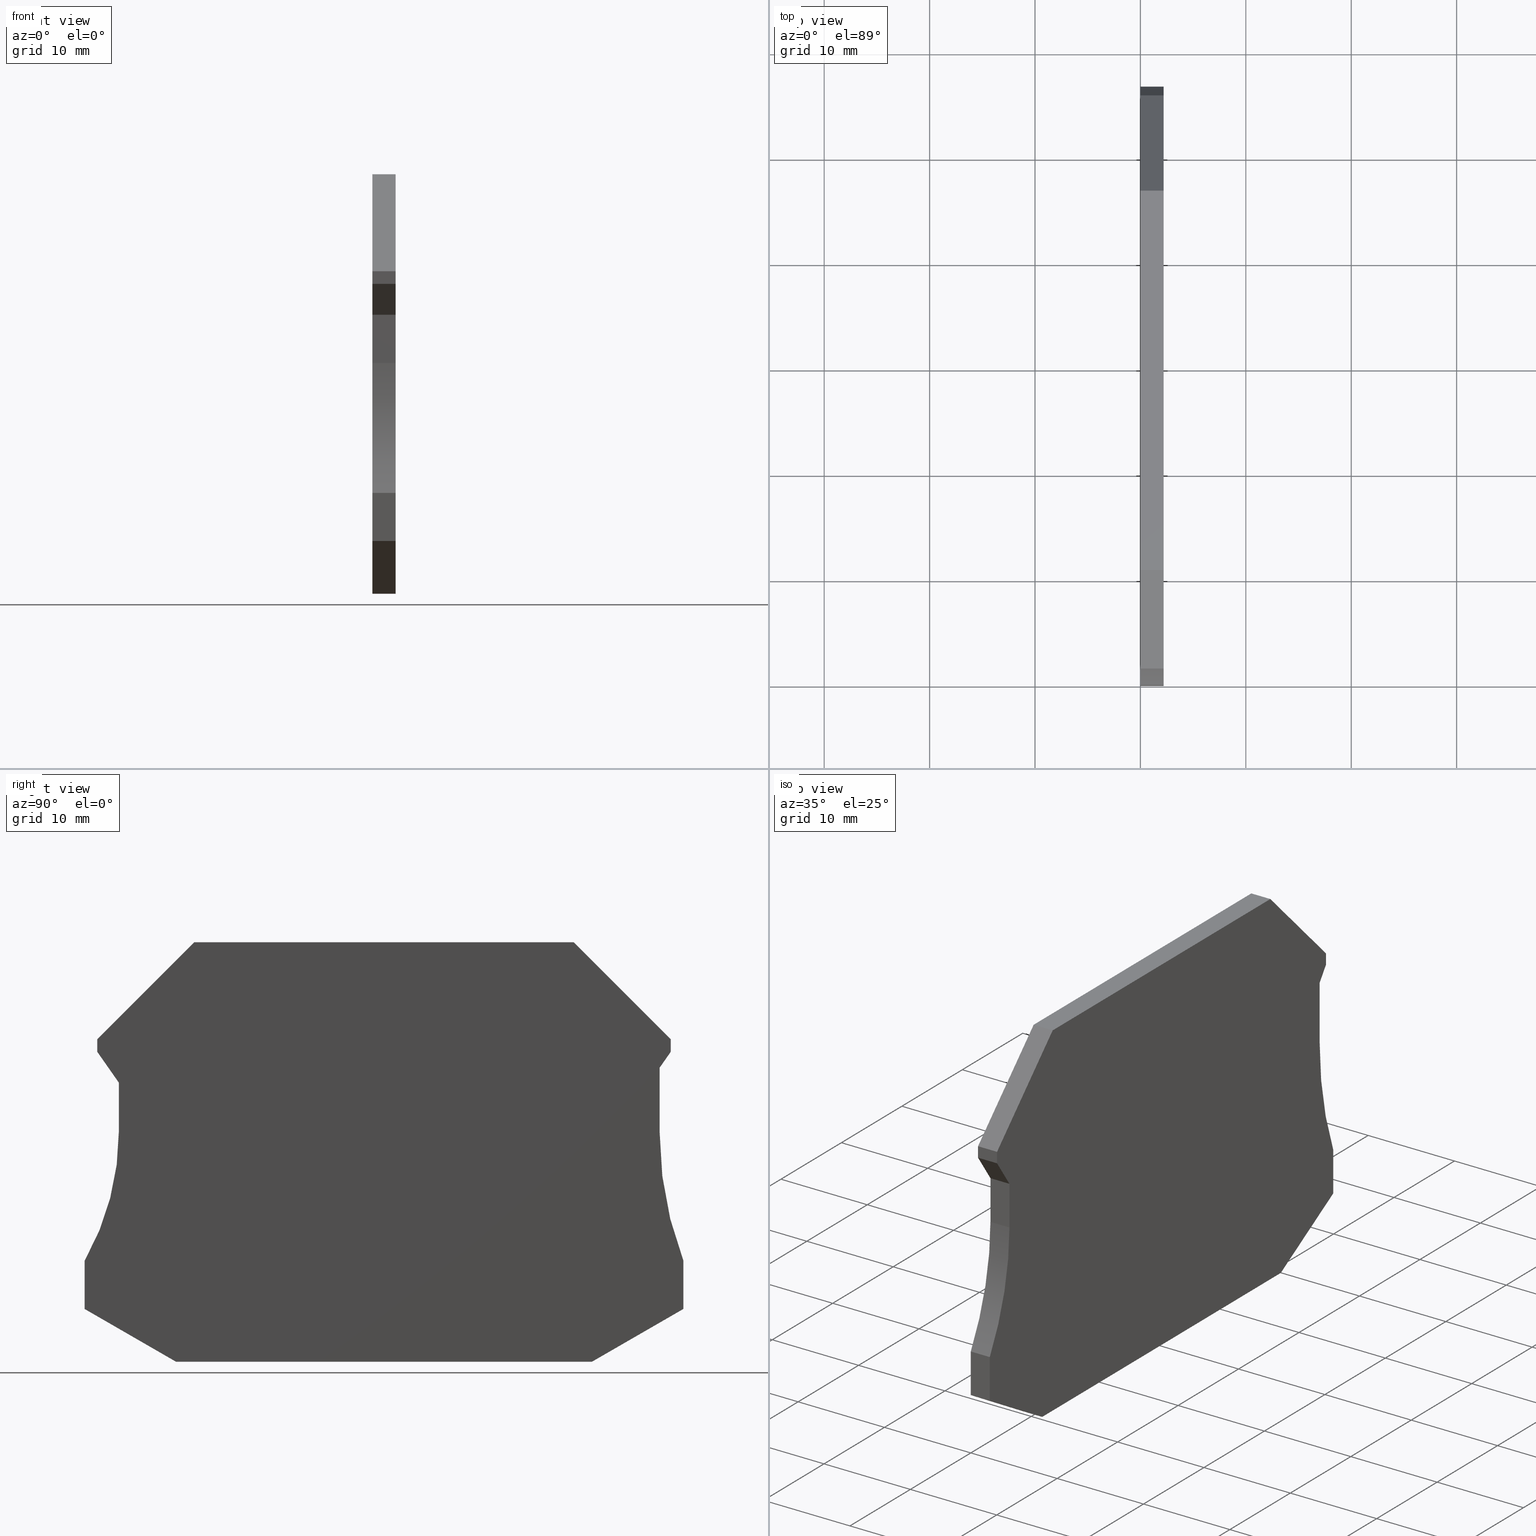
[diagram: canonical four-view strip — front | top / right | iso, engineering-drawing reading convention]
A machine part, canonical four-view strip (front | top / right | iso — engineering-drawing reading convention). The complete STEP part file that produces these views, byte-faithful:
ISO-10303-21;
HEADER;
FILE_DESCRIPTION(('Creo Elements/Direct Modeling STEP Export'),'2;1');
FILE_NAME(
'D:/temp/JobSpoolerServerData/JobServer Files/368bb295-e2b8-49bc-b2a7-e5
b2ab7b2fec/work/output/model.stp','2018-01-19T 8:37:18',(''),(''),
'Creo Elements/Direct Modeling STEP processor for AP214 (Solid Model)',
'Creo Elements/Direct Modeling 18.1I  14-Aug-2016 (C) Parametric Technol
ogy GmbH','');
FILE_SCHEMA(('AUTOMOTIVE_DESIGN { 1 0 10303 214 1 1 1 1 }'));
ENDSEC;
DATA;
#10=CARTESIAN_POINT('',(72.2463843677915,-62.2300024000076,
-4.46753745109163E-13));
#20=DIRECTION('',(0.,-1.05655906439346E-14,1.));
#30=DIRECTION('',(-1.,-1.61097812794554E-28,-1.70209354362047E-42));
#40=AXIS2_PLACEMENT_3D('',#10,#20,#30);
#50=PLANE('',#40);
#60=CARTESIAN_POINT('',(47.920285,-77.4852539852205,
-6.07934488528757E-13));
#70=DIRECTION('',(-0.866025403784439,0.5,5.27355936696949E-15));
#80=VECTOR('',#70,1.);
#90=LINE('',#60,#80);
#100=CARTESIAN_POINT('',(14.603847801119,-58.2500000000073,
-4.05057980869241E-13));
#110=VERTEX_POINT('',#100);
#120=CARTESIAN_POINT('',(5.92968082605108,-53.2419673619561,
-3.51789846203769E-13));
#130=VERTEX_POINT('',#120);
#140=EDGE_CURVE('',#110,#130,#90,.T.);
#150=ORIENTED_EDGE('',*,*,#140,.T.);
#160=CARTESIAN_POINT('',(47.920285,-58.2500000000073,
-1.71052260616391E-13));
#170=DIRECTION('',(-1.,0.,5.25980973659004E-15));
#180=VECTOR('',#170,1.);
#190=LINE('',#160,#180);
#200=CARTESIAN_POINT('',(54.0555138509831,-58.2500000000073,
-4.04768099745673E-13));
#210=VERTEX_POINT('',#200);
#220=EDGE_CURVE('',#210,#110,#190,.T.);
#230=ORIENTED_EDGE('',*,*,#220,.T.);
#240=CARTESIAN_POINT('',(-1.4210854715202E-14,-89.458965473056,
-6.97102989304098E-13));
#250=DIRECTION('',(-0.866025403784439,-0.5,-5.27355936696949E-15));
#260=VECTOR('',#250,1.);
#270=LINE('',#240,#260);
#280=CARTESIAN_POINT('',(62.7296808260511,-53.2419673619561,
-3.51947784888705E-13));
#290=VERTEX_POINT('',#280);
#300=EDGE_CURVE('',#290,#210,#270,.T.);
#310=ORIENTED_EDGE('',*,*,#300,.T.);
#320=CARTESIAN_POINT('',(62.7296808260511,6.3948846218409E-14,
2.48083819314093E-13));
#330=DIRECTION('',(0.,-1.,-1.05655906439346E-14));
#340=VECTOR('',#330,1.);
#350=LINE('',#320,#340);
#360=CARTESIAN_POINT('',(62.7296808260511,-48.6508242110641,
-1.74971148680925E-13));
#370=VERTEX_POINT('',#360);
#380=EDGE_CURVE('',#370,#290,#350,.T.);
#390=ORIENTED_EDGE('',*,*,#380,.T.);
#400=CARTESIAN_POINT('',(94.4796808260507,-36.487868155893,
-1.37223565843669E-13));
#410=DIRECTION('',(0.,0.,1.));
#420=DIRECTION('',(1.,0.,0.));
#430=AXIS2_PLACEMENT_3D('',#400,#410,#420);
#440=CIRCLE('',#430,34.);
#450=CARTESIAN_POINT('',(60.4796808260507,-36.487868155893,
-1.74971148680925E-13));
#460=VERTEX_POINT('',#450);
#470=EDGE_CURVE('',#460,#370,#440,.T.);
#480=ORIENTED_EDGE('',*,*,#470,.T.);
#490=CARTESIAN_POINT('',(60.4796808260507,6.3948846218409E-14,
2.48083819314093E-13));
#500=DIRECTION('',(0.,1.,1.05655906439346E-14));
#510=VECTOR('',#500,1.);
#520=LINE('',#490,#510);
#530=CARTESIAN_POINT('',(60.4796808260507,-30.3495554070836,
-1.09896775345054E-13));
#540=VERTEX_POINT('',#530);
#550=EDGE_CURVE('',#460,#540,#520,.T.);
#560=ORIENTED_EDGE('',*,*,#550,.F.);
#570=CARTESIAN_POINT('',(81.7306683034039,6.3948846218409E-14,
2.48083819314093E-13));
#580=DIRECTION('',(-0.573576436351046,-0.819152044288992,
-8.65973959207622E-15));
#590=VECTOR('',#580,1.);
#600=LINE('',#570,#590);
#610=CARTESIAN_POINT('',(61.5296808260507,-28.8500000000043,
-9.40440903401997E-14));
#620=VERTEX_POINT('',#610);
#630=EDGE_CURVE('',#620,#540,#600,.T.);
#640=ORIENTED_EDGE('',*,*,#630,.T.);
#650=CARTESIAN_POINT('',(61.5296808260507,6.3948846218409E-14,
2.48083819314093E-13));
#660=DIRECTION('',(0.,-1.,-1.05655906439346E-14));
#670=VECTOR('',#660,1.);
#680=LINE('',#650,#670);
#690=CARTESIAN_POINT('',(61.5296808260507,-27.6500000000088,
-8.13955952844994E-14));
#700=VERTEX_POINT('',#690);
#710=EDGE_CURVE('',#700,#620,#680,.T.);
#720=ORIENTED_EDGE('',*,*,#710,.T.);
#730=CARTESIAN_POINT('',(67.7658078260404,-33.886127,
-1.47286598378007E-13));
#740=DIRECTION('',(-0.707106781186466,0.70710678118663,
7.38298311375729E-15));
#750=VECTOR('',#740,1.);
#760=LINE('',#730,#750);
#770=CARTESIAN_POINT('',(52.3296808260488,-18.4500000000048,
1.58078386397419E-14));
#780=VERTEX_POINT('',#770);
#790=EDGE_CURVE('',#700,#780,#760,.T.);
#800=ORIENTED_EDGE('',*,*,#790,.F.);
#810=CARTESIAN_POINT('',(-1.4210854715202E-14,-18.4500000000048,
5.3148671933448E-14));
#820=DIRECTION('',(-1.,1.61097812794554E-28,1.71518932033358E-42));
#830=VECTOR('',#820,1.);
#840=LINE('',#810,#830);
#850=CARTESIAN_POINT('',(16.3296808260526,-18.4500000000048,
1.58078386397419E-14));
#860=VERTEX_POINT('',#850);
#870=EDGE_CURVE('',#780,#860,#840,.T.);
#880=ORIENTED_EDGE('',*,*,#870,.F.);
#890=CARTESIAN_POINT('',(34.7796808260532,6.3948846218409E-14,
2.48083819314093E-13));
#900=DIRECTION('',(-0.707106781186466,-0.70710678118663,
-7.43849426498855E-15));
#910=VECTOR('',#900,1.);
#920=LINE('',#890,#910);
#930=CARTESIAN_POINT('',(7.12968082605067,-27.6500000000088,
-8.1682277343663E-14));
#940=VERTEX_POINT('',#930);
#950=EDGE_CURVE('',#860,#940,#920,.T.);
#960=ORIENTED_EDGE('',*,*,#950,.F.);
#970=CARTESIAN_POINT('',(7.12968082605067,6.3948846218409E-14,
2.48083819314093E-13));
#980=DIRECTION('',(0.,-1.,-1.05655906439346E-14));
#990=VECTOR('',#980,1.);
#1000=LINE('',#970,#990);
#1010=CARTESIAN_POINT('',(7.12968082605067,-28.8500000000043,
-9.40743040571737E-14));
#1020=VERTEX_POINT('',#1010);
#1030=EDGE_CURVE('',#940,#1020,#1000,.T.);
#1040=ORIENTED_EDGE('',*,*,#1030,.F.);
#1050=CARTESIAN_POINT('',(-13.0713066513026,6.3948846218409E-14,
2.48083819314093E-13));
#1060=DIRECTION('',(0.573576436351046,-0.819152044288992,
-8.65973959207622E-15));
#1070=VECTOR('',#1060,1.);
#1080=LINE('',#1050,#1070);
#1090=CARTESIAN_POINT('',(9.17968082605068,-31.7777034138257,
-1.2500721985446E-13));
#1100=VERTEX_POINT('',#1090);
#1110=EDGE_CURVE('',#1020,#1100,#1080,.T.);
#1120=ORIENTED_EDGE('',*,*,#1110,.F.);
#1130=CARTESIAN_POINT('',(9.17968082605068,6.3948846218409E-14,
2.48083819314093E-13));
#1140=DIRECTION('',(0.,-1.,-1.05655906439346E-14));
#1150=VECTOR('',#1140,1.);
#1160=LINE('',#1130,#1150);
#1170=CARTESIAN_POINT('',(9.17968082605067,-36.3500000000066,
-1.73194791841524E-13));
#1180=VERTEX_POINT('',#1170);
#1190=EDGE_CURVE('',#1100,#1180,#1160,.T.);
#1200=ORIENTED_EDGE('',*,*,#1190,.F.);
#1210=CARTESIAN_POINT('',(-15.8203191739493,-36.3500000000066,
-1.35891298214119E-13));
#1220=DIRECTION('',(0.,0.,1.));
#1230=DIRECTION('',(1.,0.,0.));
#1240=AXIS2_PLACEMENT_3D('',#1210,#1220,#1230);
#1250=CIRCLE('',#1240,25.);
#1260=CARTESIAN_POINT('',(5.92968082605108,-48.676293035627,
-3.03550800258254E-13));
#1270=VERTEX_POINT('',#1260);
#1280=EDGE_CURVE('',#1270,#1180,#1250,.T.);
#1290=ORIENTED_EDGE('',*,*,#1280,.T.);
#1300=CARTESIAN_POINT('',(5.92968082605108,-33.886127,
-1.47283960369994E-13));
#1310=DIRECTION('',(2.77555756156289E-17,1.,1.05655906439346E-14));
#1320=VECTOR('',#1310,1.);
#1330=LINE('',#1300,#1320);
#1340=EDGE_CURVE('',#130,#1270,#1330,.T.);
#1350=ORIENTED_EDGE('',*,*,#1340,.T.);
#1360=EDGE_LOOP('',(#1350,#1290,#1200,#1120,#1040,#960,#880,#800,#720,
#640,#560,#480,#390,#310,#230,#150));
#1370=FACE_OUTER_BOUND('',#1360,.T.);
#1380=ADVANCED_FACE('',(#1370),#50,.F.);
#1390=COLOUR_RGB('',0.560784339904785,0.588235318660736,
0.600000023841858);
#1400=FILL_AREA_STYLE_COLOUR('',#1390);
#1410=FILL_AREA_STYLE('',(#1400));
#1420=SURFACE_STYLE_FILL_AREA(#1410);
#1430=SURFACE_SIDE_STYLE('',(#1420));
#1440=SURFACE_STYLE_USAGE(.BOTH.,#1430);
#1450=PRESENTATION_STYLE_ASSIGNMENT((#1440));
#1460=CARTESIAN_POINT('',(61.5296808260507,-27.6500000000048,
1.09999999999998));
#1470=DIRECTION('',(-1.,0.,0.));
#1480=DIRECTION('',(0.,1.,0.));
#1490=AXIS2_PLACEMENT_3D('',#1460,#1470,#1480);
#1500=PLANE('',#1490);
#1510=CARTESIAN_POINT('',(61.5296808260507,-27.6500000000088,
-2.8421709430404E-14));
#1520=DIRECTION('',(0.,0.,-1.));
#1530=VECTOR('',#1520,1.);
#1540=LINE('',#1510,#1530);
#1550=CARTESIAN_POINT('',(61.5296808260507,-27.6500000000088,
2.19999999999998));
#1560=VERTEX_POINT('',#1550);
#1570=EDGE_CURVE('',#1560,#700,#1540,.T.);
#1580=ORIENTED_EDGE('',*,*,#1570,.F.);
#1590=ORIENTED_EDGE('',*,*,#710,.F.);
#1600=CARTESIAN_POINT('',(61.5296808260507,-28.8500000000043,
-2.8421709430404E-14));
#1610=DIRECTION('',(0.,0.,-1.));
#1620=VECTOR('',#1610,1.);
#1630=LINE('',#1600,#1620);
#1640=CARTESIAN_POINT('',(61.5296808260507,-28.8500000000043,
2.19999999999998));
#1650=VERTEX_POINT('',#1640);
#1660=EDGE_CURVE('',#1650,#620,#1630,.T.);
#1670=ORIENTED_EDGE('',*,*,#1660,.T.);
#1680=CARTESIAN_POINT('',(61.5296808260507,-33.886127,2.19999999999998))
;
#1690=DIRECTION('',(0.,1.,0.));
#1700=VECTOR('',#1690,1.);
#1710=LINE('',#1680,#1700);
#1720=EDGE_CURVE('',#1650,#1560,#1710,.T.);
#1730=ORIENTED_EDGE('',*,*,#1720,.F.);
#1740=EDGE_LOOP('',(#1730,#1670,#1590,#1580));
#1750=FACE_OUTER_BOUND('',#1740,.T.);
#1760=ADVANCED_FACE('',(#1750),#1500,.F.);
#1770=COLOUR_RGB('',0.560784339904785,0.588235318660736,
0.600000023841858);
#1780=FILL_AREA_STYLE_COLOUR('',#1770);
#1790=FILL_AREA_STYLE('',(#1780));
#1800=SURFACE_STYLE_FILL_AREA(#1790);
#1810=SURFACE_SIDE_STYLE('',(#1800));
#1820=SURFACE_STYLE_USAGE(.BOTH.,#1810);
#1830=PRESENTATION_STYLE_ASSIGNMENT((#1820));
#1840=CARTESIAN_POINT('',(5.9713986625242,-53.2660531660738,
2.19999999999998));
#1850=DIRECTION('',(-0.5,-0.866025403784439,-0.));
#1860=DIRECTION('',(-0.866025403784439,0.5,0.));
#1870=AXIS2_PLACEMENT_3D('',#1840,#1850,#1860);
#1880=PLANE('',#1870);
#1890=CARTESIAN_POINT('',(47.920285,-77.4852539852205,2.19999999999998))
;
#1900=DIRECTION('',(-0.866025403784439,0.5,0.));
#1910=VECTOR('',#1900,1.);
#1920=LINE('',#1890,#1910);
#1930=CARTESIAN_POINT('',(14.603847801119,-58.2500000000073,
2.19999999999998));
#1940=VERTEX_POINT('',#1930);
#1950=CARTESIAN_POINT('',(5.92968082605108,-53.2419673619561,
2.19999999999998));
#1960=VERTEX_POINT('',#1950);
#1970=EDGE_CURVE('',#1940,#1960,#1920,.T.);
#1980=ORIENTED_EDGE('',*,*,#1970,.T.);
#1990=CARTESIAN_POINT('',(14.603847801119,-58.2500000000073,
-2.8421709430404E-14));
#2000=DIRECTION('',(0.,0.,-1.));
#2010=VECTOR('',#2000,1.);
#2020=LINE('',#1990,#2010);
#2030=EDGE_CURVE('',#1940,#110,#2020,.T.);
#2040=ORIENTED_EDGE('',*,*,#2030,.F.);
#2050=ORIENTED_EDGE('',*,*,#140,.F.);
#2060=CARTESIAN_POINT('',(5.92968082605108,-53.2419673619561,
-2.8421709430404E-14));
#2070=DIRECTION('',(0.,0.,1.));
#2080=VECTOR('',#2070,1.);
#2090=LINE('',#2060,#2080);
#2100=EDGE_CURVE('',#130,#1960,#2090,.T.);
#2110=ORIENTED_EDGE('',*,*,#2100,.F.);
#2120=EDGE_LOOP('',(#2110,#2050,#2040,#1980));
#2130=FACE_OUTER_BOUND('',#2120,.T.);
#2140=ADVANCED_FACE('',(#2130),#1880,.T.);
#2150=COLOUR_RGB('',0.560784339904785,0.588235318660736,
0.600000023841858);
#2160=FILL_AREA_STYLE_COLOUR('',#2150);
#2170=FILL_AREA_STYLE('',(#2160));
#2180=SURFACE_STYLE_FILL_AREA(#2170);
#2190=SURFACE_SIDE_STYLE('',(#2180));
#2200=SURFACE_STYLE_USAGE(.BOTH.,#2190);
#2210=PRESENTATION_STYLE_ASSIGNMENT((#2200));
#2220=CARTESIAN_POINT('',(-15.8203191739493,-36.3500000000066,
2.19999999999998));
#2230=DIRECTION('',(0.,0.,1.));
#2240=DIRECTION('',(1.,0.,0.));
#2250=AXIS2_PLACEMENT_3D('',#2220,#2230,#2240);
#2260=CYLINDRICAL_SURFACE('',#2250,25.);
#2270=ORIENTED_EDGE('',*,*,#1280,.F.);
#2280=CARTESIAN_POINT('',(9.17968082605067,-36.3500000000066,
1.09999999999998));
#2290=DIRECTION('',(0.,0.,-1.));
#2300=VECTOR('',#2290,1.);
#2310=LINE('',#2280,#2300);
#2320=CARTESIAN_POINT('',(9.17968082605067,-36.3500000000066,
2.19999999999998));
#2330=VERTEX_POINT('',#2320);
#2340=EDGE_CURVE('',#2330,#1180,#2310,.T.);
#2350=ORIENTED_EDGE('',*,*,#2340,.T.);
#2360=CARTESIAN_POINT('',(-15.8203191739493,-36.3500000000066,
2.19999999999998));
#2370=DIRECTION('',(0.,0.,1.));
#2380=DIRECTION('',(1.,0.,0.));
#2390=AXIS2_PLACEMENT_3D('',#2360,#2370,#2380);
#2400=CIRCLE('',#2390,25.);
#2410=CARTESIAN_POINT('',(5.92968082605108,-48.676293035627,
2.19999999999998));
#2420=VERTEX_POINT('',#2410);
#2430=EDGE_CURVE('',#2420,#2330,#2400,.T.);
#2440=ORIENTED_EDGE('',*,*,#2430,.T.);
#2450=CARTESIAN_POINT('',(5.92968082605108,-48.676293035627,
2.19999999999998));
#2460=DIRECTION('',(0.,0.,1.));
#2470=VECTOR('',#2460,1.);
#2480=LINE('',#2450,#2470);
#2490=EDGE_CURVE('',#1270,#2420,#2480,.T.);
#2500=ORIENTED_EDGE('',*,*,#2490,.T.);
#2510=EDGE_LOOP('',(#2500,#2440,#2350,#2270));
#2520=FACE_OUTER_BOUND('',#2510,.T.);
#2530=ADVANCED_FACE('',(#2520),#2260,.F.);
#2540=COLOUR_RGB('',0.560784339904785,0.588235318660736,
0.600000023841858);
#2550=FILL_AREA_STYLE_COLOUR('',#2540);
#2560=FILL_AREA_STYLE('',(#2550));
#2570=SURFACE_STYLE_FILL_AREA(#2560);
#2580=SURFACE_SIDE_STYLE('',(#2570));
#2590=SURFACE_STYLE_USAGE(.BOTH.,#2580);
#2600=PRESENTATION_STYLE_ASSIGNMENT((#2590));
#2610=CARTESIAN_POINT('',(52.3296808260488,-18.4500000000048,
1.09999999999998));
#2620=DIRECTION('',(-0.70710678118663,-0.707106781186466,-0.));
#2630=DIRECTION('',(-0.707106781186466,0.70710678118663,0.));
#2640=AXIS2_PLACEMENT_3D('',#2610,#2620,#2630);
#2650=PLANE('',#2640);
#2660=CARTESIAN_POINT('',(52.3296808260488,-18.4500000000048,
-2.8421709430404E-14));
#2670=DIRECTION('',(-1.05655906439322E-14,1.05655906439346E-14,-1.));
#2680=VECTOR('',#2670,1.);
#2690=LINE('',#2660,#2680);
#2700=CARTESIAN_POINT('',(52.3296808260488,-18.4500000000048,
2.19999999999998));
#2710=VERTEX_POINT('',#2700);
#2720=EDGE_CURVE('',#2710,#780,#2690,.T.);
#2730=ORIENTED_EDGE('',*,*,#2720,.F.);
#2740=ORIENTED_EDGE('',*,*,#790,.T.);
#2750=ORIENTED_EDGE('',*,*,#1570,.T.);
#2760=CARTESIAN_POINT('',(67.7658078260404,-33.886127,2.19999999999998))
;
#2770=DIRECTION('',(-0.707106781186466,0.70710678118663,0.));
#2780=VECTOR('',#2770,1.);
#2790=LINE('',#2760,#2780);
#2800=EDGE_CURVE('',#1560,#2710,#2790,.T.);
#2810=ORIENTED_EDGE('',*,*,#2800,.F.);
#2820=EDGE_LOOP('',(#2810,#2750,#2740,#2730));
#2830=FACE_OUTER_BOUND('',#2820,.T.);
#2840=ADVANCED_FACE('',(#2830),#2650,.F.);
#2850=COLOUR_RGB('',0.560784339904785,0.588235318660736,
0.600000023841858);
#2860=FILL_AREA_STYLE_COLOUR('',#2850);
#2870=FILL_AREA_STYLE('',(#2860));
#2880=SURFACE_STYLE_FILL_AREA(#2870);
#2890=SURFACE_SIDE_STYLE('',(#2880));
#2900=SURFACE_STYLE_USAGE(.BOTH.,#2890);
#2910=PRESENTATION_STYLE_ASSIGNMENT((#2900));
#2920=CARTESIAN_POINT('',(34.1296808260507,-18.4500000000048,
1.60000000000014));
#2930=DIRECTION('',(1.61097812794554E-28,-1.,-1.05655906439346E-14));
#2940=DIRECTION('',(-1.,0.,-1.52474024617862E-14));
#2950=AXIS2_PLACEMENT_3D('',#2920,#2930,#2940);
#2960=PLANE('',#2950);
#2970=CARTESIAN_POINT('',(16.3296808260526,-18.4500000000048,
-2.8421709430404E-14));
#2980=DIRECTION('',(1.05655906439322E-14,1.05655906439346E-14,-1.));
#2990=VECTOR('',#2980,1.);
#3000=LINE('',#2970,#2990);
#3010=CARTESIAN_POINT('',(16.3296808260526,-18.4500000000048,
2.19999999999998));
#3020=VERTEX_POINT('',#3010);
#3030=EDGE_CURVE('',#3020,#860,#3000,.T.);
#3040=ORIENTED_EDGE('',*,*,#3030,.F.);
#3050=ORIENTED_EDGE('',*,*,#870,.T.);
#3060=ORIENTED_EDGE('',*,*,#2720,.T.);
#3070=CARTESIAN_POINT('',(47.920285,-18.4500000000048,2.19999999999998))
;
#3080=DIRECTION('',(1.,-1.61097812794554E-28,0.));
#3090=VECTOR('',#3080,1.);
#3100=LINE('',#3070,#3090);
#3110=EDGE_CURVE('',#3020,#2710,#3100,.T.);
#3120=ORIENTED_EDGE('',*,*,#3110,.T.);
#3130=EDGE_LOOP('',(#3120,#3060,#3050,#3040));
#3140=FACE_OUTER_BOUND('',#3130,.T.);
#3150=ADVANCED_FACE('',(#3140),#2960,.F.);
#3160=COLOUR_RGB('',0.560784339904785,0.588235318660736,
0.600000023841858);
#3170=FILL_AREA_STYLE_COLOUR('',#3160);
#3180=FILL_AREA_STYLE('',(#3170));
#3190=SURFACE_STYLE_FILL_AREA(#3180);
#3200=SURFACE_SIDE_STYLE('',(#3190));
#3210=SURFACE_STYLE_USAGE(.BOTH.,#3200);
#3220=PRESENTATION_STYLE_ASSIGNMENT((#3210));
#3230=CARTESIAN_POINT('',(16.3296808260526,-18.4500000000048,
1.09999999999998));
#3240=DIRECTION('',(-0.70710678118663,0.707106781186466,0.));
#3250=DIRECTION('',(0.707106781186466,0.70710678118663,0.));
#3260=AXIS2_PLACEMENT_3D('',#3230,#3240,#3250);
#3270=PLANE('',#3260);
#3280=CARTESIAN_POINT('',(0.893553826060931,-33.886127,2.19999999999998)
);
#3290=DIRECTION('',(0.707106781186466,0.70710678118663,0.));
#3300=VECTOR('',#3290,1.);
#3310=LINE('',#3280,#3300);
#3320=CARTESIAN_POINT('',(7.12968082605067,-27.6500000000088,
2.19999999999998));
#3330=VERTEX_POINT('',#3320);
#3340=EDGE_CURVE('',#3330,#3020,#3310,.T.);
#3350=ORIENTED_EDGE('',*,*,#3340,.T.);
#3360=CARTESIAN_POINT('',(7.12968082605067,-27.6500000000088,
-2.8421709430404E-14));
#3370=DIRECTION('',(0.,0.,-1.));
#3380=VECTOR('',#3370,1.);
#3390=LINE('',#3360,#3380);
#3400=EDGE_CURVE('',#3330,#940,#3390,.T.);
#3410=ORIENTED_EDGE('',*,*,#3400,.F.);
#3420=ORIENTED_EDGE('',*,*,#950,.T.);
#3430=ORIENTED_EDGE('',*,*,#3030,.T.);
#3440=EDGE_LOOP('',(#3430,#3420,#3410,#3350));
#3450=FACE_OUTER_BOUND('',#3440,.T.);
#3460=ADVANCED_FACE('',(#3450),#3270,.T.);
#3470=COLOUR_RGB('',0.560784339904785,0.588235318660736,
0.600000023841858);
#3480=FILL_AREA_STYLE_COLOUR('',#3470);
#3490=FILL_AREA_STYLE('',(#3480));
#3500=SURFACE_STYLE_FILL_AREA(#3490);
#3510=SURFACE_SIDE_STYLE('',(#3500));
#3520=SURFACE_STYLE_USAGE(.BOTH.,#3510);
#3530=PRESENTATION_STYLE_ASSIGNMENT((#3520));
#3540=CARTESIAN_POINT('',(7.12968082605067,-28.8500000000043,
1.09999999999998));
#3550=DIRECTION('',(-0.819152044288992,-0.573576436351046,-0.));
#3560=DIRECTION('',(-0.573576436351046,0.819152044288992,0.));
#3570=AXIS2_PLACEMENT_3D('',#3540,#3550,#3560);
#3580=PLANE('',#3570);
#3590=CARTESIAN_POINT('',(10.6560149148291,-33.886127,2.19999999999998))
;
#3600=DIRECTION('',(-0.573576436351046,0.819152044288992,0.));
#3610=VECTOR('',#3600,1.);
#3620=LINE('',#3590,#3610);
#3630=CARTESIAN_POINT('',(9.17968082605068,-31.7777034138257,
2.19999999999998));
#3640=VERTEX_POINT('',#3630);
#3650=CARTESIAN_POINT('',(7.12968082605067,-28.8500000000043,
2.19999999999998));
#3660=VERTEX_POINT('',#3650);
#3670=EDGE_CURVE('',#3640,#3660,#3620,.T.);
#3680=ORIENTED_EDGE('',*,*,#3670,.T.);
#3690=CARTESIAN_POINT('',(9.17968082605068,-31.7777034138257,
-2.8421709430404E-14));
#3700=DIRECTION('',(0.,0.,1.));
#3710=VECTOR('',#3700,1.);
#3720=LINE('',#3690,#3710);
#3730=EDGE_CURVE('',#1100,#3640,#3720,.T.);
#3740=ORIENTED_EDGE('',*,*,#3730,.T.);
#3750=ORIENTED_EDGE('',*,*,#1110,.T.);
#3760=CARTESIAN_POINT('',(7.12968082605067,-28.8500000000043,
-2.8421709430404E-14));
#3770=DIRECTION('',(0.,0.,-1.));
#3780=VECTOR('',#3770,1.);
#3790=LINE('',#3760,#3780);
#3800=EDGE_CURVE('',#3660,#1020,#3790,.T.);
#3810=ORIENTED_EDGE('',*,*,#3800,.T.);
#3820=EDGE_LOOP('',(#3810,#3750,#3740,#3680));
#3830=FACE_OUTER_BOUND('',#3820,.T.);
#3840=ADVANCED_FACE('',(#3830),#3580,.T.);
#3850=COLOUR_RGB('',0.560784339904785,0.588235318660736,
0.600000023841858);
#3860=FILL_AREA_STYLE_COLOUR('',#3850);
#3870=FILL_AREA_STYLE('',(#3860));
#3880=SURFACE_STYLE_FILL_AREA(#3870);
#3890=SURFACE_SIDE_STYLE('',(#3880));
#3900=SURFACE_STYLE_USAGE(.BOTH.,#3890);
#3910=PRESENTATION_STYLE_ASSIGNMENT((#3900));
#3920=CARTESIAN_POINT('',(7.12968082605067,-27.6500000000048,
1.09999999999998));
#3930=DIRECTION('',(-1.,0.,0.));
#3940=DIRECTION('',(0.,1.,0.));
#3950=AXIS2_PLACEMENT_3D('',#3920,#3930,#3940);
#3960=PLANE('',#3950);
#3970=CARTESIAN_POINT('',(7.12968082605067,-33.886127,2.19999999999998))
;
#3980=DIRECTION('',(0.,1.,0.));
#3990=VECTOR('',#3980,1.);
#4000=LINE('',#3970,#3990);
#4010=EDGE_CURVE('',#3660,#3330,#4000,.T.);
#4020=ORIENTED_EDGE('',*,*,#4010,.T.);
#4030=ORIENTED_EDGE('',*,*,#3800,.F.);
#4040=ORIENTED_EDGE('',*,*,#1030,.T.);
#4050=ORIENTED_EDGE('',*,*,#3400,.T.);
#4060=EDGE_LOOP('',(#4050,#4040,#4030,#4020));
#4070=FACE_OUTER_BOUND('',#4060,.T.);
#4080=ADVANCED_FACE('',(#4070),#3960,.T.);
#4090=COLOUR_RGB('',0.560784339904785,0.588235318660736,
0.600000023841858);
#4100=FILL_AREA_STYLE_COLOUR('',#4090);
#4110=FILL_AREA_STYLE('',(#4100));
#4120=SURFACE_STYLE_FILL_AREA(#4110);
#4130=SURFACE_SIDE_STYLE('',(#4120));
#4140=SURFACE_STYLE_USAGE(.BOTH.,#4130);
#4150=PRESENTATION_STYLE_ASSIGNMENT((#4140));
#4160=CARTESIAN_POINT('',(5.92968082605108,-49.4434141445546,
-2.20000240000003));
#4170=DIRECTION('',(1.,-2.77555756156289E-17,0.));
#4180=DIRECTION('',(-2.77555756156289E-17,-1.,0.));
#4190=AXIS2_PLACEMENT_3D('',#4160,#4170,#4180);
#4200=PLANE('',#4190);
#4210=ORIENTED_EDGE('',*,*,#2100,.T.);
#4220=ORIENTED_EDGE('',*,*,#1340,.F.);
#4230=ORIENTED_EDGE('',*,*,#2490,.F.);
#4240=CARTESIAN_POINT('',(5.92968082605108,-33.886127,2.19999999999998))
;
#4250=DIRECTION('',(-2.77555756156289E-17,-1.,0.));
#4260=VECTOR('',#4250,1.);
#4270=LINE('',#4240,#4260);
#4280=EDGE_CURVE('',#2420,#1960,#4270,.T.);
#4290=ORIENTED_EDGE('',*,*,#4280,.F.);
#4300=EDGE_LOOP('',(#4290,#4230,#4220,#4210));
#4310=FACE_OUTER_BOUND('',#4300,.T.);
#4320=ADVANCED_FACE('',(#4310),#4200,.F.);
#4330=COLOUR_RGB('',0.560784339904785,0.588235318660736,
0.600000023841858);
#4340=FILL_AREA_STYLE_COLOUR('',#4330);
#4350=FILL_AREA_STYLE('',(#4340));
#4360=SURFACE_STYLE_FILL_AREA(#4350);
#4370=SURFACE_SIDE_STYLE('',(#4360));
#4380=SURFACE_STYLE_USAGE(.BOTH.,#4370);
#4390=PRESENTATION_STYLE_ASSIGNMENT((#4380));
#4400=CARTESIAN_POINT('',(44.1436703654952,-58.2500000000073,
-0.50000000000004));
#4410=DIRECTION('',(-0.,-1.,-0.));
#4420=DIRECTION('',(-1.,0.,0.));
#4430=AXIS2_PLACEMENT_3D('',#4400,#4410,#4420);
#4440=PLANE('',#4430);
#4450=CARTESIAN_POINT('',(47.920285,-58.2500000000073,2.19999999999998))
;
#4460=DIRECTION('',(-1.,0.,0.));
#4470=VECTOR('',#4460,1.);
#4480=LINE('',#4450,#4470);
#4490=CARTESIAN_POINT('',(54.0555138509831,-58.2500000000073,
2.19999999999998));
#4500=VERTEX_POINT('',#4490);
#4510=EDGE_CURVE('',#4500,#1940,#4480,.T.);
#4520=ORIENTED_EDGE('',*,*,#4510,.T.);
#4530=CARTESIAN_POINT('',(54.0555138509831,-58.2500000000073,
-2.8421709430404E-14));
#4540=DIRECTION('',(0.,0.,1.));
#4550=VECTOR('',#4540,1.);
#4560=LINE('',#4530,#4550);
#4570=EDGE_CURVE('',#210,#4500,#4560,.T.);
#4580=ORIENTED_EDGE('',*,*,#4570,.T.);
#4590=ORIENTED_EDGE('',*,*,#220,.F.);
#4600=ORIENTED_EDGE('',*,*,#2030,.T.);
#4610=EDGE_LOOP('',(#4600,#4590,#4580,#4520));
#4620=FACE_OUTER_BOUND('',#4610,.T.);
#4630=ADVANCED_FACE('',(#4620),#4440,.T.);
#4640=COLOUR_RGB('',0.560784339904785,0.588235318660736,
0.600000023841858);
#4650=FILL_AREA_STYLE_COLOUR('',#4640);
#4660=FILL_AREA_STYLE('',(#4650));
#4670=SURFACE_STYLE_FILL_AREA(#4660);
#4680=SURFACE_SIDE_STYLE('',(#4670));
#4690=SURFACE_STYLE_USAGE(.BOTH.,#4680);
#4700=PRESENTATION_STYLE_ASSIGNMENT((#4690));
#4710=CARTESIAN_POINT('',(61.5296808260507,-28.8500000000043,
1.09999999999998));
#4720=DIRECTION('',(-0.819152044288992,0.573576436351046,0.));
#4730=DIRECTION('',(0.573576436351046,0.819152044288992,0.));
#4740=AXIS2_PLACEMENT_3D('',#4710,#4720,#4730);
#4750=PLANE('',#4740);
#4760=CARTESIAN_POINT('',(58.0033467372723,-33.886127,2.19999999999998))
;
#4770=DIRECTION('',(0.573576436351046,0.819152044288992,0.));
#4780=VECTOR('',#4770,1.);
#4790=LINE('',#4760,#4780);
#4800=CARTESIAN_POINT('',(60.4796808260507,-30.3495554070836,
2.19999999999998));
#4810=VERTEX_POINT('',#4800);
#4820=EDGE_CURVE('',#4810,#1650,#4790,.T.);
#4830=ORIENTED_EDGE('',*,*,#4820,.F.);
#4840=ORIENTED_EDGE('',*,*,#1660,.F.);
#4850=ORIENTED_EDGE('',*,*,#630,.F.);
#4860=CARTESIAN_POINT('',(60.4796808260507,-30.3495554070836,
-2.8421709430404E-14));
#4870=DIRECTION('',(0.,0.,1.));
#4880=VECTOR('',#4870,1.);
#4890=LINE('',#4860,#4880);
#4900=EDGE_CURVE('',#540,#4810,#4890,.T.);
#4910=ORIENTED_EDGE('',*,*,#4900,.F.);
#4920=EDGE_LOOP('',(#4910,#4850,#4840,#4830));
#4930=FACE_OUTER_BOUND('',#4920,.T.);
#4940=ADVANCED_FACE('',(#4930),#4750,.F.);
#4950=COLOUR_RGB('',0.560784339904785,0.588235318660736,
0.600000023841858);
#4960=FILL_AREA_STYLE_COLOUR('',#4950);
#4970=FILL_AREA_STYLE('',(#4960));
#4980=SURFACE_STYLE_FILL_AREA(#4970);
#4990=SURFACE_SIDE_STYLE('',(#4980));
#5000=SURFACE_STYLE_USAGE(.BOTH.,#4990);
#5010=PRESENTATION_STYLE_ASSIGNMENT((#5000));
#5020=CARTESIAN_POINT('',(60.4796808260507,-36.487868155893,
2.19999999999998));
#5030=DIRECTION('',(1.,0.,0.));
#5040=DIRECTION('',(0.,-1.,0.));
#5050=AXIS2_PLACEMENT_3D('',#5020,#5030,#5040);
#5060=PLANE('',#5050);
#5070=CARTESIAN_POINT('',(60.4796808260507,-36.487868155893,
-3.81916720471054E-14));
#5080=DIRECTION('',(0.,0.,1.));
#5090=VECTOR('',#5080,1.);
#5100=LINE('',#5070,#5090);
#5110=CARTESIAN_POINT('',(60.4796808260507,-36.487868155893,
2.19999999999998));
#5120=VERTEX_POINT('',#5110);
#5130=EDGE_CURVE('',#460,#5120,#5100,.T.);
#5140=ORIENTED_EDGE('',*,*,#5130,.F.);
#5150=CARTESIAN_POINT('',(60.4796808260507,-33.886127,2.19999999999998))
;
#5160=DIRECTION('',(0.,-1.,0.));
#5170=VECTOR('',#5160,1.);
#5180=LINE('',#5150,#5170);
#5190=EDGE_CURVE('',#4810,#5120,#5180,.T.);
#5200=ORIENTED_EDGE('',*,*,#5190,.T.);
#5210=ORIENTED_EDGE('',*,*,#4900,.T.);
#5220=ORIENTED_EDGE('',*,*,#550,.T.);
#5230=EDGE_LOOP('',(#5220,#5210,#5200,#5140));
#5240=FACE_OUTER_BOUND('',#5230,.T.);
#5250=ADVANCED_FACE('',(#5240),#5060,.T.);
#5260=COLOUR_RGB('',0.560784339904785,0.588235318660736,
0.600000023841858);
#5270=FILL_AREA_STYLE_COLOUR('',#5260);
#5280=FILL_AREA_STYLE('',(#5270));
#5290=SURFACE_STYLE_FILL_AREA(#5280);
#5300=SURFACE_SIDE_STYLE('',(#5290));
#5310=SURFACE_STYLE_USAGE(.BOTH.,#5300);
#5320=PRESENTATION_STYLE_ASSIGNMENT((#5310));
#5330=CARTESIAN_POINT('',(94.4796808260507,-36.487868155893,
2.19999999999998));
#5340=DIRECTION('',(0.,0.,1.));
#5350=DIRECTION('',(1.,0.,0.));
#5360=AXIS2_PLACEMENT_3D('',#5330,#5340,#5350);
#5370=CYLINDRICAL_SURFACE('',#5360,34.);
#5380=ORIENTED_EDGE('',*,*,#5130,.T.);
#5390=ORIENTED_EDGE('',*,*,#470,.F.);
#5400=CARTESIAN_POINT('',(62.7296808260511,-48.6508242110641,
2.19999999999998));
#5410=DIRECTION('',(0.,0.,1.));
#5420=VECTOR('',#5410,1.);
#5430=LINE('',#5400,#5420);
#5440=CARTESIAN_POINT('',(62.7296808260511,-48.6508242110641,
2.19999999999998));
#5450=VERTEX_POINT('',#5440);
#5460=EDGE_CURVE('',#370,#5450,#5430,.T.);
#5470=ORIENTED_EDGE('',*,*,#5460,.F.);
#5480=CARTESIAN_POINT('',(94.4796808260507,-36.487868155893,
2.19999999999998));
#5490=DIRECTION('',(0.,0.,1.));
#5500=DIRECTION('',(1.,0.,0.));
#5510=AXIS2_PLACEMENT_3D('',#5480,#5490,#5500);
#5520=CIRCLE('',#5510,34.);
#5530=EDGE_CURVE('',#5120,#5450,#5520,.T.);
#5540=ORIENTED_EDGE('',*,*,#5530,.T.);
#5550=EDGE_LOOP('',(#5540,#5470,#5390,#5380));
#5560=FACE_OUTER_BOUND('',#5550,.T.);
#5570=ADVANCED_FACE('',(#5560),#5370,.F.);
#5580=COLOUR_RGB('',0.560784339904785,0.588235318660736,
0.600000023841858);
#5590=FILL_AREA_STYLE_COLOUR('',#5580);
#5600=FILL_AREA_STYLE('',(#5590));
#5610=SURFACE_STYLE_FILL_AREA(#5600);
#5620=SURFACE_SIDE_STYLE('',(#5610));
#5630=SURFACE_STYLE_USAGE(.BOTH.,#5620);
#5640=PRESENTATION_STYLE_ASSIGNMENT((#5630));
#5650=CARTESIAN_POINT('',(62.7296808260511,-52.3759419581716,
-2.20000240000003));
#5660=DIRECTION('',(-1.,0.,0.));
#5670=DIRECTION('',(0.,1.,0.));
#5680=AXIS2_PLACEMENT_3D('',#5650,#5660,#5670);
#5690=PLANE('',#5680);
#5700=CARTESIAN_POINT('',(62.7296808260511,-53.2419673619561,
-2.8421709430404E-14));
#5710=DIRECTION('',(0.,0.,1.));
#5720=VECTOR('',#5710,1.);
#5730=LINE('',#5700,#5720);
#5740=CARTESIAN_POINT('',(62.7296808260511,-53.2419673619561,
2.19999999999998));
#5750=VERTEX_POINT('',#5740);
#5760=EDGE_CURVE('',#290,#5750,#5730,.T.);
#5770=ORIENTED_EDGE('',*,*,#5760,.F.);
#5780=CARTESIAN_POINT('',(62.7296808260511,-33.886127,2.19999999999998))
;
#5790=DIRECTION('',(0.,1.,0.));
#5800=VECTOR('',#5790,1.);
#5810=LINE('',#5780,#5800);
#5820=EDGE_CURVE('',#5750,#5450,#5810,.T.);
#5830=ORIENTED_EDGE('',*,*,#5820,.F.);
#5840=ORIENTED_EDGE('',*,*,#5460,.T.);
#5850=ORIENTED_EDGE('',*,*,#380,.F.);
#5860=EDGE_LOOP('',(#5850,#5840,#5830,#5770));
#5870=FACE_OUTER_BOUND('',#5860,.T.);
#5880=ADVANCED_FACE('',(#5870),#5690,.F.);
#5890=COLOUR_RGB('',0.560784339904785,0.588235318660736,
0.600000023841858);
#5900=FILL_AREA_STYLE_COLOUR('',#5890);
#5910=FILL_AREA_STYLE('',(#5900));
#5920=SURFACE_STYLE_FILL_AREA(#5910);
#5930=SURFACE_SIDE_STYLE('',(#5920));
#5940=SURFACE_STYLE_USAGE(.BOTH.,#5930);
#5950=PRESENTATION_STYLE_ASSIGNMENT((#5940));
#5960=CARTESIAN_POINT('',(9.17968082605068,-31.7777034138257,
1.09999999999998));
#5970=DIRECTION('',(-1.,0.,0.));
#5980=DIRECTION('',(0.,1.,0.));
#5990=AXIS2_PLACEMENT_3D('',#5960,#5970,#5980);
#6000=PLANE('',#5990);
#6010=CARTESIAN_POINT('',(9.17968082605068,-33.886127,2.19999999999998))
;
#6020=DIRECTION('',(0.,1.,0.));
#6030=VECTOR('',#6020,1.);
#6040=LINE('',#6010,#6030);
#6050=EDGE_CURVE('',#2330,#3640,#6040,.T.);
#6060=ORIENTED_EDGE('',*,*,#6050,.T.);
#6070=ORIENTED_EDGE('',*,*,#2340,.F.);
#6080=ORIENTED_EDGE('',*,*,#1190,.T.);
#6090=ORIENTED_EDGE('',*,*,#3730,.F.);
#6100=EDGE_LOOP('',(#6090,#6080,#6070,#6060));
#6110=FACE_OUTER_BOUND('',#6100,.T.);
#6120=ADVANCED_FACE('',(#6110),#6000,.T.);
#6130=COLOUR_RGB('',0.560784339904785,0.588235318660736,
0.600000023841858);
#6140=FILL_AREA_STYLE_COLOUR('',#6130);
#6150=FILL_AREA_STYLE('',(#6140));
#6160=SURFACE_STYLE_FILL_AREA(#6150);
#6170=SURFACE_SIDE_STYLE('',(#6160));
#6180=SURFACE_STYLE_USAGE(.BOTH.,#6170);
#6190=PRESENTATION_STYLE_ASSIGNMENT((#6180));
#6200=CARTESIAN_POINT('',(53.7643751530933,-58.4180890056055,
-2.20000240000003));
#6210=DIRECTION('',(-0.5,0.866025403784439,0.));
#6220=DIRECTION('',(0.866025403784439,0.5,0.));
#6230=AXIS2_PLACEMENT_3D('',#6200,#6210,#6220);
#6240=PLANE('',#6230);
#6250=CARTESIAN_POINT('',(47.920285,-61.7921760286624,2.19999999999998))
;
#6260=DIRECTION('',(0.866025403784439,0.5,0.));
#6270=VECTOR('',#6260,1.);
#6280=LINE('',#6250,#6270);
#6290=EDGE_CURVE('',#4500,#5750,#6280,.T.);
#6300=ORIENTED_EDGE('',*,*,#6290,.F.);
#6310=ORIENTED_EDGE('',*,*,#5760,.T.);
#6320=ORIENTED_EDGE('',*,*,#300,.F.);
#6330=ORIENTED_EDGE('',*,*,#4570,.F.);
#6340=EDGE_LOOP('',(#6330,#6320,#6310,#6300));
#6350=FACE_OUTER_BOUND('',#6340,.T.);
#6360=ADVANCED_FACE('',(#6350),#6240,.F.);
#6370=COLOUR_RGB('',0.560784339904785,0.588235318660736,
0.600000023841858);
#6380=FILL_AREA_STYLE_COLOUR('',#6370);
#6390=FILL_AREA_STYLE('',(#6380));
#6400=SURFACE_STYLE_FILL_AREA(#6390);
#6410=SURFACE_SIDE_STYLE('',(#6400));
#6420=SURFACE_STYLE_USAGE(.BOTH.,#6410);
#6430=PRESENTATION_STYLE_ASSIGNMENT((#6420));
#6440=CARTESIAN_POINT('',(38.6361215118332,-55.6492949760279,
2.19999999999998));
#6450=DIRECTION('',(0.,0.,1.));
#6460=DIRECTION('',(1.,0.,0.));
#6470=AXIS2_PLACEMENT_3D('',#6440,#6450,#6460);
#6480=PLANE('',#6470);
#6490=ORIENTED_EDGE('',*,*,#4280,.T.);
#6500=ORIENTED_EDGE('',*,*,#2430,.F.);
#6510=ORIENTED_EDGE('',*,*,#6050,.F.);
#6520=ORIENTED_EDGE('',*,*,#3670,.F.);
#6530=ORIENTED_EDGE('',*,*,#4010,.F.);
#6540=ORIENTED_EDGE('',*,*,#3340,.F.);
#6550=ORIENTED_EDGE('',*,*,#3110,.F.);
#6560=ORIENTED_EDGE('',*,*,#2800,.T.);
#6570=ORIENTED_EDGE('',*,*,#1720,.T.);
#6580=ORIENTED_EDGE('',*,*,#4820,.T.);
#6590=ORIENTED_EDGE('',*,*,#5190,.F.);
#6600=ORIENTED_EDGE('',*,*,#5530,.F.);
#6610=ORIENTED_EDGE('',*,*,#5820,.T.);
#6620=ORIENTED_EDGE('',*,*,#6290,.T.);
#6630=ORIENTED_EDGE('',*,*,#4510,.F.);
#6640=ORIENTED_EDGE('',*,*,#1970,.F.);
#6650=EDGE_LOOP('',(#6640,#6630,#6620,#6610,#6600,#6590,#6580,#6570,
#6560,#6550,#6540,#6530,#6520,#6510,#6500,#6490));
#6660=FACE_OUTER_BOUND('',#6650,.T.);
#6670=ADVANCED_FACE('',(#6660),#6480,.T.);
#6680=COLOUR_RGB('',0.560784339904785,0.588235318660736,
0.600000023841858);
#6690=FILL_AREA_STYLE_COLOUR('',#6680);
#6700=FILL_AREA_STYLE('',(#6690));
#6710=SURFACE_STYLE_FILL_AREA(#6700);
#6720=SURFACE_SIDE_STYLE('',(#6710));
#6730=SURFACE_STYLE_USAGE(.BOTH.,#6720);
#6740=PRESENTATION_STYLE_ASSIGNMENT((#6730));
#6750=CLOSED_SHELL('',(#1380,#1760,#2140,#2530,#2840,#3150,#3460,#3840,
#4080,#4320,#4630,#4940,#5250,#5570,#5880,#6120,#6360,#6670));
#6760=MANIFOLD_SOLID_BREP('',#6750);
#6770=CARTESIAN_POINT('',(0.,0.,0.));
#6780=DIRECTION('',(0.,0.,1.));
#6790=DIRECTION('',(1.,0.,0.));
#6800=AXIS2_PLACEMENT_3D('',#6770,#6780,#6790);
#6810=APPLICATION_CONTEXT(' ');
#6820=APPLICATION_PROTOCOL_DEFINITION(' ','automotive_design',1998,#6810
);
#6830=PRODUCT_CONTEXT('',#6810,'mechanical');
#6840=PRODUCT_DEFINITION_CONTEXT('part definition',#6810,'design');
#6850=PRODUCT('D_UT_2.5_4_TWIN-select','D_UT_2.5_4_TWIN-select','',(
#6830));
#6860=PRODUCT_RELATED_PRODUCT_CATEGORY('part',' ',(#6850));
#6870=PRODUCT_DEFINITION_FORMATION_WITH_SPECIFIED_SOURCE('','',#6850,
.BOUGHT.);
#6880=PRODUCT_DEFINITION('',' ',#6870,#6840);
#6890=PRODUCT_DEFINITION_SHAPE('','',#6880);
#6900=DIMENSIONAL_EXPONENTS(1.,0.,0.,0.,0.,0.,0.);
#6910=DIMENSIONAL_EXPONENTS(0.,0.,0.,0.,0.,0.,0.);
#6920=DIMENSIONAL_EXPONENTS(0.,0.,0.,0.,0.,0.,0.);
#6930=(LENGTH_UNIT() NAMED_UNIT(*) SI_UNIT(.MILLI.,.METRE.));
#6940=(NAMED_UNIT(*) PLANE_ANGLE_UNIT() SI_UNIT($,.RADIAN.));
#6950=(NAMED_UNIT(*) SI_UNIT($,.STERADIAN.) SOLID_ANGLE_UNIT());
#6960=(GEOMETRIC_REPRESENTATION_CONTEXT(3) 
GLOBAL_UNCERTAINTY_ASSIGNED_CONTEXT((#6970)) 
GLOBAL_UNIT_ASSIGNED_CONTEXT((#6930,#6940,#6950)) REPRESENTATION_CONTEXT
('',''));
#6970=UNCERTAINTY_MEASURE_WITH_UNIT(LENGTH_MEASURE(1.E-6),#6930,
'distance_accuracy_value','maximum gap value');
#6980=ADVANCED_BREP_SHAPE_REPRESENTATION('',(#6800,#6760),#6960);
#6990=SHAPE_DEFINITION_REPRESENTATION(#6890,#6980);
#7000=COLOUR_RGB('',0.560784339904785,0.588235318660736,
0.600000023841858);
#7010=FILL_AREA_STYLE_COLOUR('',#7000);
#7020=FILL_AREA_STYLE('',(#7010));
#7030=SURFACE_STYLE_FILL_AREA(#7020);
#7040=SURFACE_SIDE_STYLE('',(#7030));
#7050=SURFACE_STYLE_USAGE(.BOTH.,#7040);
#7060=PRESENTATION_STYLE_ASSIGNMENT((#7050));
#7070=STYLED_ITEM('',(#7060),#6760);
#7080=OVER_RIDING_STYLED_ITEM('',(#1450),#1380,#7070);
#7090=OVER_RIDING_STYLED_ITEM('',(#1830),#1760,#7070);
#7100=OVER_RIDING_STYLED_ITEM('',(#2210),#2140,#7070);
#7110=OVER_RIDING_STYLED_ITEM('',(#2600),#2530,#7070);
#7120=OVER_RIDING_STYLED_ITEM('',(#2910),#2840,#7070);
#7130=OVER_RIDING_STYLED_ITEM('',(#3220),#3150,#7070);
#7140=OVER_RIDING_STYLED_ITEM('',(#3530),#3460,#7070);
#7150=OVER_RIDING_STYLED_ITEM('',(#3910),#3840,#7070);
#7160=OVER_RIDING_STYLED_ITEM('',(#4150),#4080,#7070);
#7170=OVER_RIDING_STYLED_ITEM('',(#4390),#4320,#7070);
#7180=OVER_RIDING_STYLED_ITEM('',(#4700),#4630,#7070);
#7190=OVER_RIDING_STYLED_ITEM('',(#5010),#4940,#7070);
#7200=OVER_RIDING_STYLED_ITEM('',(#5320),#5250,#7070);
#7210=OVER_RIDING_STYLED_ITEM('',(#5640),#5570,#7070);
#7220=OVER_RIDING_STYLED_ITEM('',(#5950),#5880,#7070);
#7230=OVER_RIDING_STYLED_ITEM('',(#6190),#6120,#7070);
#7240=OVER_RIDING_STYLED_ITEM('',(#6430),#6360,#7070);
#7250=OVER_RIDING_STYLED_ITEM('',(#6740),#6670,#7070);
#7260=DRAUGHTING_MODEL('',(#7070,#7080,#7090,#7100,#7110,#7120,#7130,
#7140,#7150,#7160,#7170,#7180,#7190,#7200,#7210,#7220,#7230,#7240,#7250)
,#6960);
#7270=CARTESIAN_POINT('',(-2.10742986020386E-13,-5.92968082605162,
58.2500000000067));
#7280=DIRECTION('',(1.,-1.11631705655199E-28,1.05655906439346E-14));
#7290=DIRECTION('',(0.,1.,1.05655906439346E-14));
#7300=AXIS2_PLACEMENT_3D('',#7270,#7280,#7290);
#7310=ITEM_DEFINED_TRANSFORMATION('D_UT_2.5_4_TWIN-select','',#6800,
#7300);
#7320=APPLICATION_CONTEXT(' ');
#7330=APPLICATION_PROTOCOL_DEFINITION(' ','automotive_design',1998,#7320
);
#7340=PRODUCT_CONTEXT('',#7320,'mechanical');
#7350=PRODUCT_DEFINITION_CONTEXT('part definition',#7320,'design');
#7360=PRODUCT('D_UT_2.5_4_TWIN-select','D_UT_2.5_4_TWIN-select','',(
#7340));
#7370=PRODUCT_RELATED_PRODUCT_CATEGORY('part',' ',(#7360));
#7380=PRODUCT_DEFINITION_FORMATION_WITH_SPECIFIED_SOURCE('','',#7360,
.BOUGHT.);
#7390=PRODUCT_DEFINITION('',' ',#7380,#7350);
#7400=PRODUCT_DEFINITION_SHAPE('','',#7390);
#7410=DIMENSIONAL_EXPONENTS(1.,0.,0.,0.,0.,0.,0.);
#7420=DIMENSIONAL_EXPONENTS(0.,0.,0.,0.,0.,0.,0.);
#7430=DIMENSIONAL_EXPONENTS(0.,0.,0.,0.,0.,0.,0.);
#7440=(LENGTH_UNIT() NAMED_UNIT(*) SI_UNIT(.MILLI.,.METRE.));
#7450=(NAMED_UNIT(*) PLANE_ANGLE_UNIT() SI_UNIT($,.RADIAN.));
#7460=(NAMED_UNIT(*) SI_UNIT($,.STERADIAN.) SOLID_ANGLE_UNIT());
#7470=(GEOMETRIC_REPRESENTATION_CONTEXT(3) 
GLOBAL_UNCERTAINTY_ASSIGNED_CONTEXT((#7480)) 
GLOBAL_UNIT_ASSIGNED_CONTEXT((#7440,#7450,#7460)) REPRESENTATION_CONTEXT
('',''));
#7480=UNCERTAINTY_MEASURE_WITH_UNIT(LENGTH_MEASURE(1.E-6),#7440,
'distance_accuracy_value','maximum gap value');
#7490=SHAPE_REPRESENTATION('',(#6800,#7300),#7470);
#7500=SHAPE_DEFINITION_REPRESENTATION(#7400,#7490);
#7510=(REPRESENTATION_RELATIONSHIP('','',#6980,#7490) 
REPRESENTATION_RELATIONSHIP_WITH_TRANSFORMATION(#7310) 
SHAPE_REPRESENTATION_RELATIONSHIP());
#7520=NEXT_ASSEMBLY_USAGE_OCCURRENCE('1','','D_UT_2.5_4_TWIN-select',
#7390,#6880,'');
#7530=PRODUCT_DEFINITION_SHAPE('','',#7520);
#7540=CONTEXT_DEPENDENT_SHAPE_REPRESENTATION(#7510,#7530);
ENDSEC;
END-ISO-10303-21;
